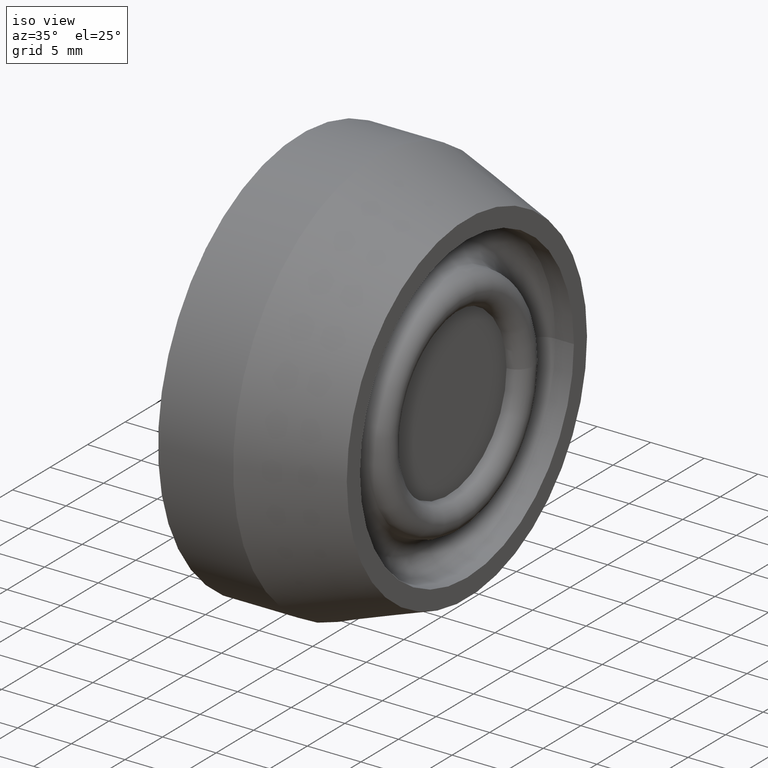
[diagram: clean part render]
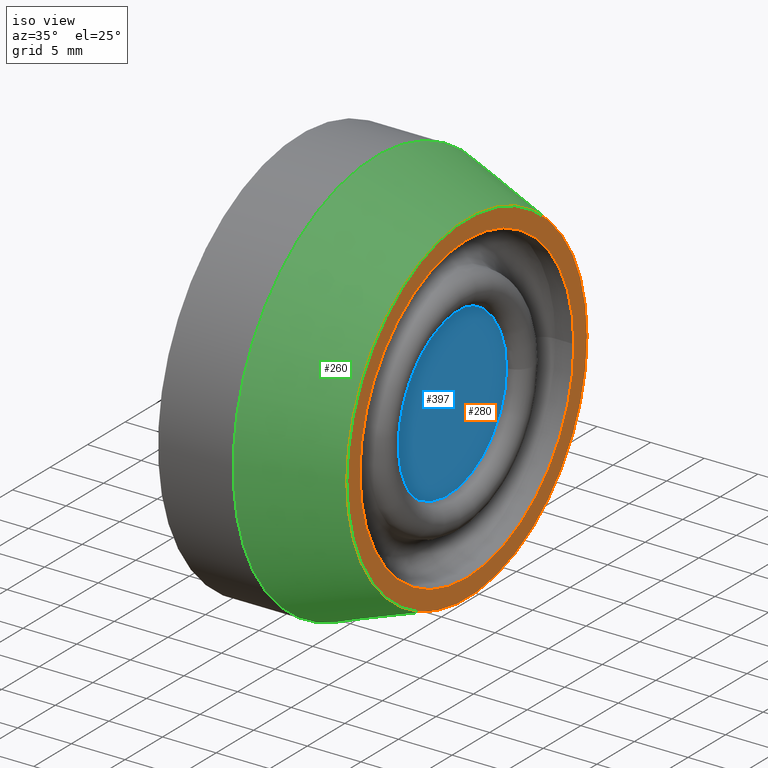
[diagram: same view with three faces highlighted in distinct colors, each labeled with its STEP entity id]
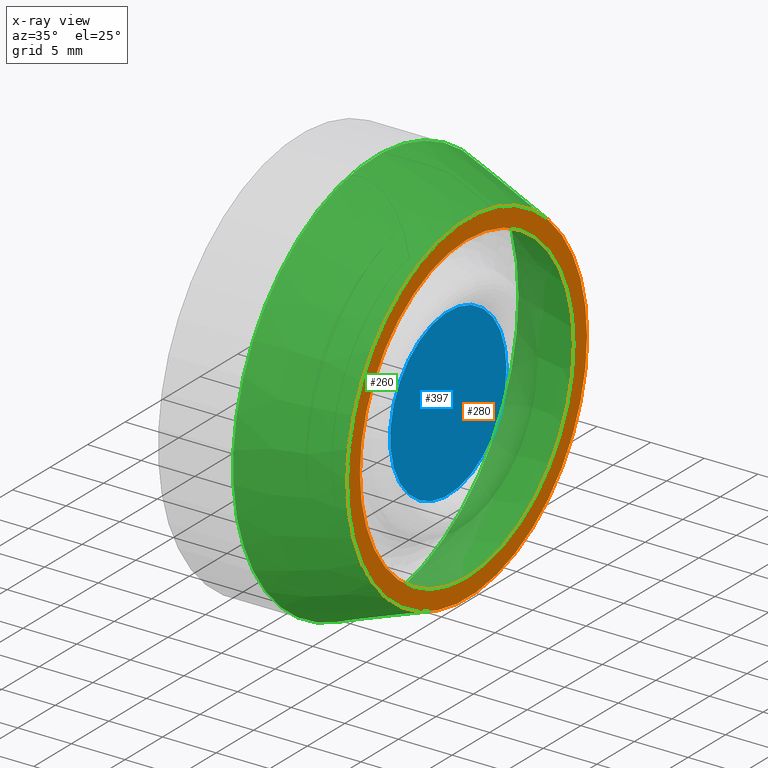
[diagram: x-ray of the same camera — body ghosted, the three highlighted faces saturated]
A machine part, iso view with three faces highlighted in distinct colors.
The next image is the same camera in x-ray (body ghosted, the three faces saturated) — at least one of them is partly hidden behind the body in this view.
Their STEP definitions:

[orange] entity #280 — the highlighted planar face has unit normal (1, 0, 0).
#238=CARTESIAN_POINT('',(-0.597371556211971,8.111111049393836,0.0));
#239=VERTEX_POINT('',#238);
#240=CARTESIAN_POINT('',(-0.597371556211970,-7.888888950606166,0.0));
#241=DIRECTION('',(1.0,0.0,0.0));
#242=DIRECTION('',(0.0,1.0,0.0));
#243=AXIS2_PLACEMENT_3D('',#240,#241,#242);
#244=CIRCLE('',#243,16.0);
#245=EDGE_CURVE('',#239,#239,#244,.T.);
#261=CARTESIAN_POINT('',(-0.597371556211971,7.236111049393835,0.0));
#262=DIRECTION('',(1.0,0.0,0.0));
#263=DIRECTION('',(0.0,0.0,-1.0));
#264=AXIS2_PLACEMENT_3D('',#261,#262,#263);
#265=PLANE('',#264);
#266=ORIENTED_EDGE('',*,*,#245,.T.);
#267=EDGE_LOOP('',(#266));
#268=FACE_OUTER_BOUND('',#267,.T.);
#269=CARTESIAN_POINT('',(-0.597371556211971,6.361111049393835,0.0));
#270=VERTEX_POINT('',#269);
#271=CARTESIAN_POINT('',(-0.597371556211970,-7.888888950606166,0.0));
#272=DIRECTION('',(1.0,0.0,0.0));
#273=DIRECTION('',(0.0,1.0,0.0));
#274=AXIS2_PLACEMENT_3D('',#271,#272,#273);
#275=CIRCLE('',#274,14.250000000000000);
#276=EDGE_CURVE('',#270,#270,#275,.T.);
#277=ORIENTED_EDGE('',*,*,#276,.F.);
#278=EDGE_LOOP('',(#277));
#279=FACE_BOUND('',#278,.T.);
#280=ADVANCED_FACE('',(#268,#279),#265,.T.);

[blue] entity #397 — the highlighted planar face has unit normal (1, 0, 0).
#374=CARTESIAN_POINT('',(-2.329749069226686,-0.138888950606166,0.0));
#375=VERTEX_POINT('',#374);
#376=CARTESIAN_POINT('',(-2.329749069226685,-7.888888950606166,0.0));
#377=DIRECTION('',(1.0,0.0,0.0));
#378=DIRECTION('',(0.0,1.0,0.0));
#379=AXIS2_PLACEMENT_3D('',#376,#377,#378);
#380=CIRCLE('',#379,7.749999999999999);
#381=EDGE_CURVE('',#375,#375,#380,.T.);
#389=CARTESIAN_POINT('',(-2.329749069226685,-4.013888950606166,0.0));
#390=DIRECTION('',(1.0,0.0,0.0));
#391=DIRECTION('',(0.0,0.0,-1.0));
#392=AXIS2_PLACEMENT_3D('',#389,#390,#391);
#393=PLANE('',#392);
#394=ORIENTED_EDGE('',*,*,#381,.T.);
#395=EDGE_LOOP('',(#394));
#396=FACE_OUTER_BOUND('',#395,.T.);
#397=ADVANCED_FACE('',(#396),#393,.T.);

[green] entity #260 — the highlighted conical surface has half-angle 19.44 deg.
#233=CARTESIAN_POINT('',(-4.847371556211970,-7.888888950606166,0.0));
#234=DIRECTION('',(-1.0,0.0,0.0));
#235=DIRECTION('',(0.0,1.0,0.0));
#236=AXIS2_PLACEMENT_3D('',#233,#234,#235);
#237=CONICAL_SURFACE('',#236,17.500000000000000,19.440034828176199);
#238=CARTESIAN_POINT('',(-0.597371556211971,8.111111049393836,0.0));
#239=VERTEX_POINT('',#238);
#240=CARTESIAN_POINT('',(-0.597371556211970,-7.888888950606166,0.0));
#241=DIRECTION('',(1.0,0.0,0.0));
#242=DIRECTION('',(0.0,1.0,0.0));
#243=AXIS2_PLACEMENT_3D('',#240,#241,#242);
#244=CIRCLE('',#243,16.0);
#245=EDGE_CURVE('',#239,#239,#244,.T.);
#246=ORIENTED_EDGE('',*,*,#245,.F.);
#247=EDGE_LOOP('',(#246));
#248=FACE_OUTER_BOUND('',#247,.T.);
#249=CARTESIAN_POINT('',(-9.097371556211970,11.111111049393836,0.0));
#250=VERTEX_POINT('',#249);
#251=CARTESIAN_POINT('',(-9.097371556211970,-7.888888950606166,0.0));
#252=DIRECTION('',(1.0,0.0,0.0));
#253=DIRECTION('',(0.0,1.0,0.0));
#254=AXIS2_PLACEMENT_3D('',#251,#252,#253);
#255=CIRCLE('',#254,19.0);
#256=EDGE_CURVE('',#250,#250,#255,.T.);
#257=ORIENTED_EDGE('',*,*,#256,.T.);
#258=EDGE_LOOP('',(#257));
#259=FACE_BOUND('',#258,.T.);
#260=ADVANCED_FACE('',(#248,#259),#237,.T.);